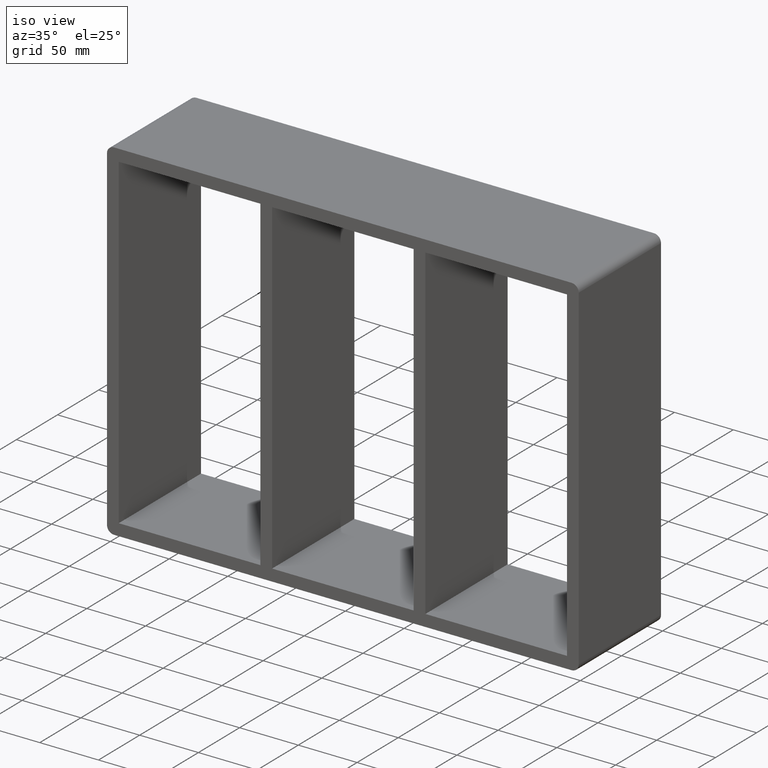
[diagram: clean part render]
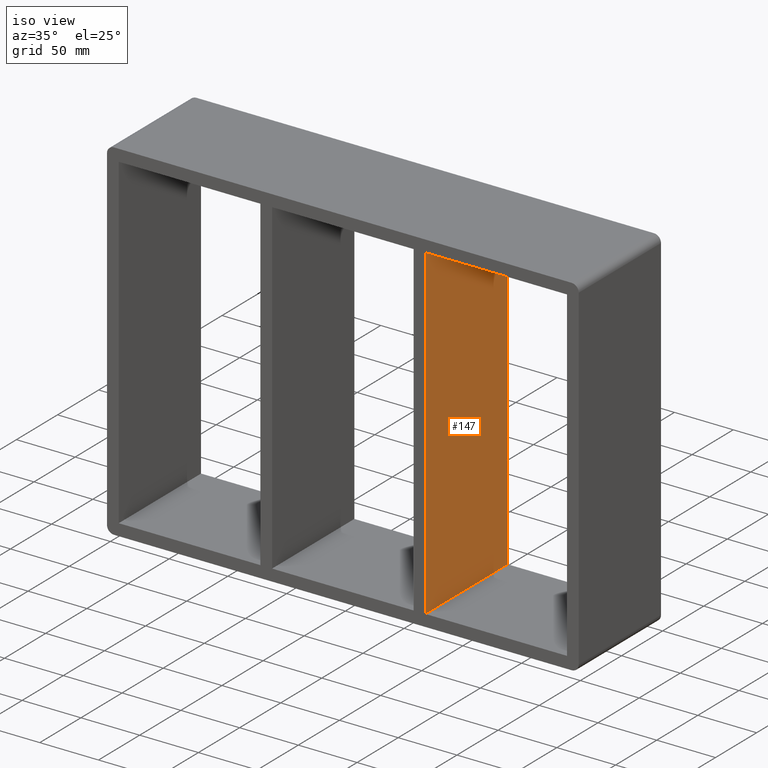
[diagram: same view with one face highlighted and labeled with its STEP entity id]
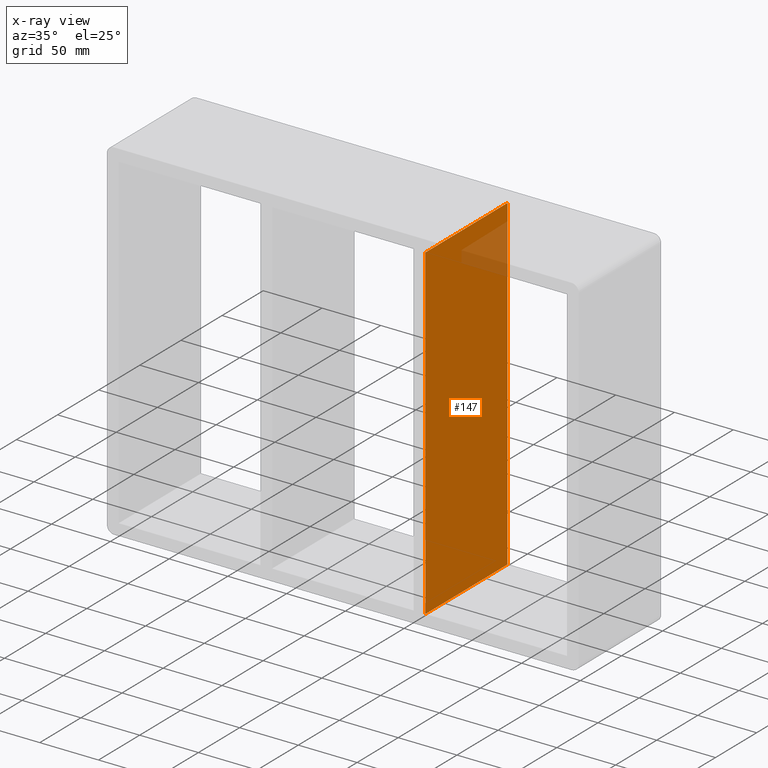
[diagram: x-ray of the same camera — body ghosted, the highlighted face saturated]
A machine part, iso view. The second image highlights one B-rep face of the part: STEP entity #147.
The next image is the same camera in x-ray: the body ghosted, the highlighted face saturated — about 5% of this face is hidden behind the body in this view.
In plain terms, the highlighted planar face has unit normal (1, 0, 0).
Its self-contained STEP definition (entity closure, byte-faithful):
#108=CARTESIAN_POINT('',(70.249999999994543,-3.0,139.0));
#109=DIRECTION('',(1.0,0.0,0.0));
#110=DIRECTION('',(0.0,0.0,-1.0));
#111=AXIS2_PLACEMENT_3D('',#108,#109,#110);
#112=PLANE('',#111);
#113=CARTESIAN_POINT('',(70.249999999994543,-3.0,139.0));
#114=VERTEX_POINT('',#113);
#115=CARTESIAN_POINT('',(70.249999999994543,-3.0,-138.99999999999804));
#116=VERTEX_POINT('',#115);
#117=CARTESIAN_POINT('',(70.249999999994543,-3.0,139.0));
#118=DIRECTION('',(0.0,0.0,-1.0));
#119=VECTOR('',#118,277.99999999999801);
#120=LINE('',#117,#119);
#121=EDGE_CURVE('',#114,#116,#120,.T.);
#122=ORIENTED_EDGE('',*,*,#121,.T.);
#123=CARTESIAN_POINT('',(70.249999999994543,97.0,-138.99999999999804));
#124=VERTEX_POINT('',#123);
#125=CARTESIAN_POINT('',(70.249999999994543,97.0,-139.0));
#126=DIRECTION('',(0.0,-1.0,0.0));
#127=VECTOR('',#126,100.0);
#128=LINE('',#125,#127);
#129=EDGE_CURVE('',#124,#116,#128,.T.);
#130=ORIENTED_EDGE('',*,*,#129,.F.);
#131=CARTESIAN_POINT('',(70.249999999994543,97.0,139.0));
#132=VERTEX_POINT('',#131);
#133=CARTESIAN_POINT('',(70.249999999994543,97.0,139.0));
#134=DIRECTION('',(0.0,0.0,-1.0));
#135=VECTOR('',#134,277.99999999999801);
#136=LINE('',#133,#135);
#137=EDGE_CURVE('',#132,#124,#136,.T.);
#138=ORIENTED_EDGE('',*,*,#137,.F.);
#139=CARTESIAN_POINT('',(70.249999999994543,-3.0,139.0));
#140=DIRECTION('',(0.0,1.0,0.0));
#141=VECTOR('',#140,100.0);
#142=LINE('',#139,#141);
#143=EDGE_CURVE('',#114,#132,#142,.T.);
#144=ORIENTED_EDGE('',*,*,#143,.F.);
#145=EDGE_LOOP('',(#122,#130,#138,#144));
#146=FACE_OUTER_BOUND('',#145,.T.);
#147=ADVANCED_FACE('',(#146),#112,.T.);